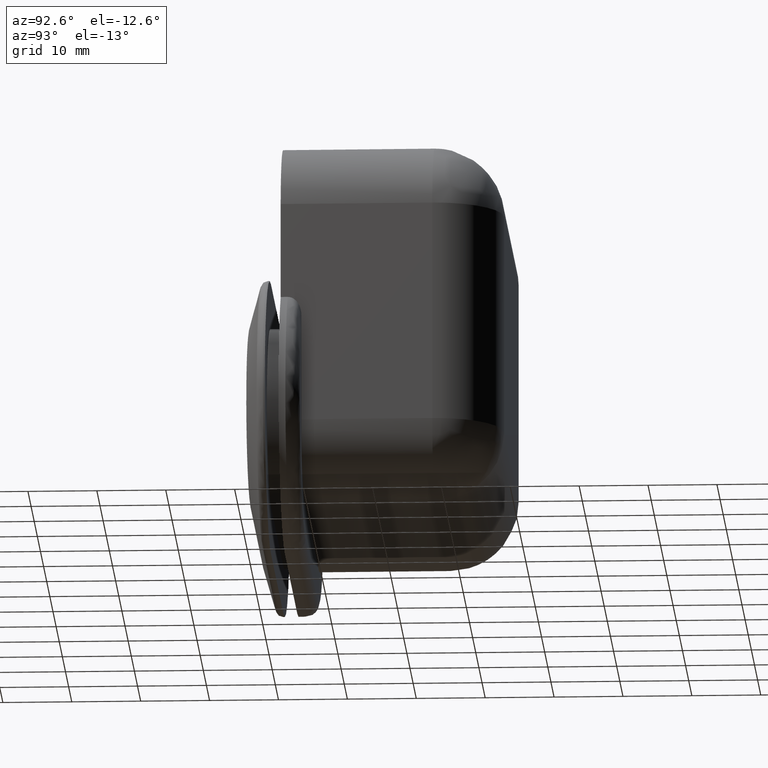
[diagram: clean part render]
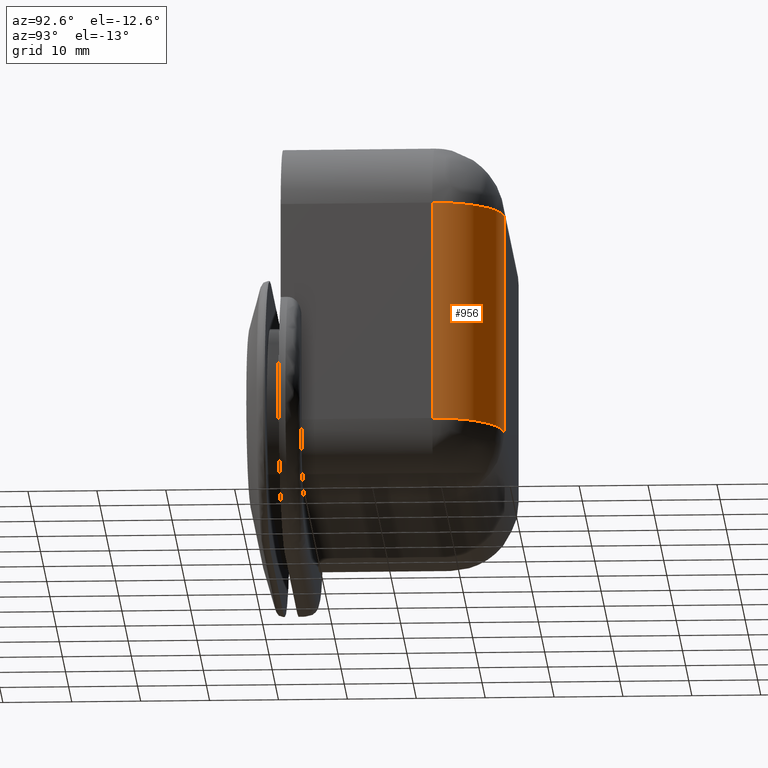
[diagram: same view with one face highlighted and labeled with its STEP entity id]
A machine part, auxiliary view. The second image highlights one B-rep face of the part: STEP entity #956.
In plain terms, the highlighted face is a freeform B-spline surface patch.
Its self-contained STEP definition (entity closure, byte-faithful):
#445=CARTESIAN_POINT('',(33.0,27.0,-3.000000000000100));
#446=VERTEX_POINT('',#445);
#447=CARTESIAN_POINT('',(33.0,27.0,29.0));
#448=VERTEX_POINT('',#447);
#449=CARTESIAN_POINT('',(33.0,27.0,-3.000000000000100));
#450=CARTESIAN_POINT('',(33.0,27.0,29.0));
#451=QUASI_UNIFORM_CURVE('',1,(#449,#450),.UNSPECIFIED.,.F.,.U.);
#452=EDGE_CURVE('',#446,#448,#451,.T.);
#699=CARTESIAN_POINT('',(23.0,37.0,29.0));
#700=VERTEX_POINT('',#699);
#906=CARTESIAN_POINT('',(32.996573249755571,26.738230516921270,29.800000000000011));
#907=CARTESIAN_POINT('',(32.996573249755571,26.738230516921270,-3.820000000000107));
#908=CARTESIAN_POINT('',(33.284922601662608,37.749848005547193,29.800000000000004));
#909=CARTESIAN_POINT('',(33.284922601662608,37.749848005547193,-3.820000000000107));
#910=CARTESIAN_POINT('',(22.296799243740164,36.975244793808095,29.800000000000015));
#911=CARTESIAN_POINT('',(22.296799243740164,36.975244793808095,-3.820000000000107));
#919=(BOUNDED_SURFACE()B_SPLINE_SURFACE(1,2,((#906,#908,#910),(#907,#909,#911)),.UNSPECIFIED.,.F.,.F.,.U.)B_SPLINE_SURFACE_WITH_KNOTS((2,2),(3,3),(0.0,33.620000000000118),(0.0,17.711423440883639),.UNSPECIFIED.)GEOMETRIC_REPRESENTATION_ITEM()RATIONAL_B_SPLINE_SURFACE(((1.0,0.670944223154768,0.996392648609106),(1.0,0.670944223154768,0.996392648609106)))REPRESENTATION_ITEM('')SURFACE());
#920=CARTESIAN_POINT('',(23.0,37.0,29.0));
#921=CARTESIAN_POINT('',(33.0,37.0,29.0));
#922=CARTESIAN_POINT('',(33.0,27.0,29.0));
#930=(BOUNDED_CURVE()B_SPLINE_CURVE(2,(#920,#921,#922),.UNSPECIFIED.,.F.,.U.)CURVE()GEOMETRIC_REPRESENTATION_ITEM()QUASI_UNIFORM_CURVE()RATIONAL_B_SPLINE_CURVE((1.0,0.707106781186548,1.0))REPRESENTATION_ITEM(''));
#931=EDGE_CURVE('',#700,#448,#930,.T.);
#932=ORIENTED_EDGE('',*,*,#931,.T.);
#933=ORIENTED_EDGE('',*,*,#452,.F.);
#934=CARTESIAN_POINT('',(23.0,37.0,-3.000000000000100));
#935=VERTEX_POINT('',#934);
#936=CARTESIAN_POINT('',(23.0,37.0,-3.000000000000100));
#937=CARTESIAN_POINT('',(33.0,37.0,-3.000000000000101));
#938=CARTESIAN_POINT('',(33.0,27.0,-3.000000000000100));
#946=(BOUNDED_CURVE()B_SPLINE_CURVE(2,(#936,#937,#938),.UNSPECIFIED.,.F.,.U.)CURVE()GEOMETRIC_REPRESENTATION_ITEM()QUASI_UNIFORM_CURVE()RATIONAL_B_SPLINE_CURVE((1.0,0.707106781186548,1.0))REPRESENTATION_ITEM(''));
#947=EDGE_CURVE('',#935,#446,#946,.T.);
#948=ORIENTED_EDGE('',*,*,#947,.F.);
#949=CARTESIAN_POINT('',(23.0,37.0,29.0));
#950=CARTESIAN_POINT('',(23.0,37.0,-3.000000000000100));
#951=QUASI_UNIFORM_CURVE('',1,(#949,#950),.UNSPECIFIED.,.F.,.U.);
#952=EDGE_CURVE('',#700,#935,#951,.T.);
#953=ORIENTED_EDGE('',*,*,#952,.F.);
#954=EDGE_LOOP('',(#932,#933,#948,#953));
#955=FACE_OUTER_BOUND('',#954,.T.);
#956=ADVANCED_FACE('',(#955),#919,.T.);